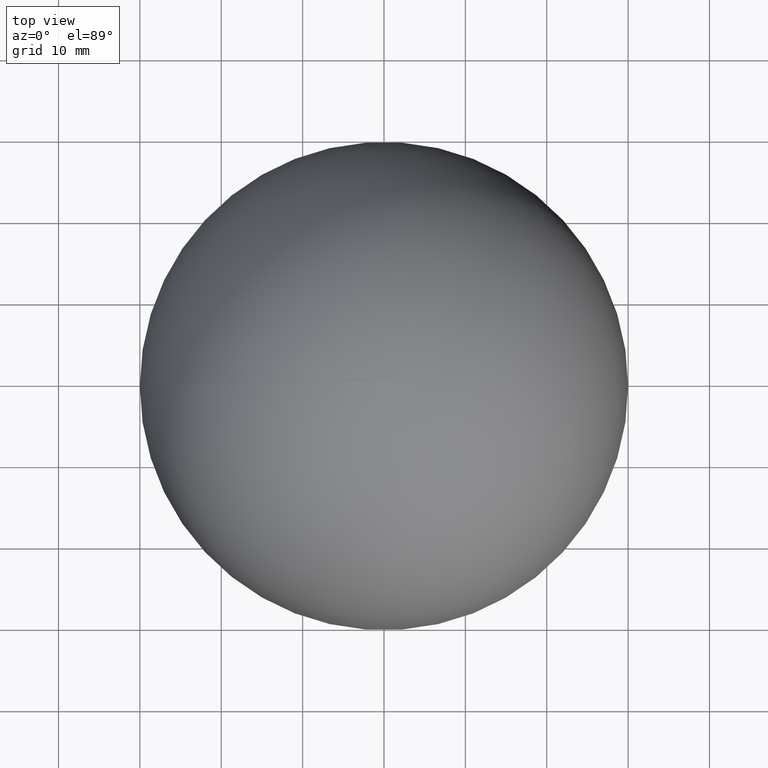
[diagram: clean part render]
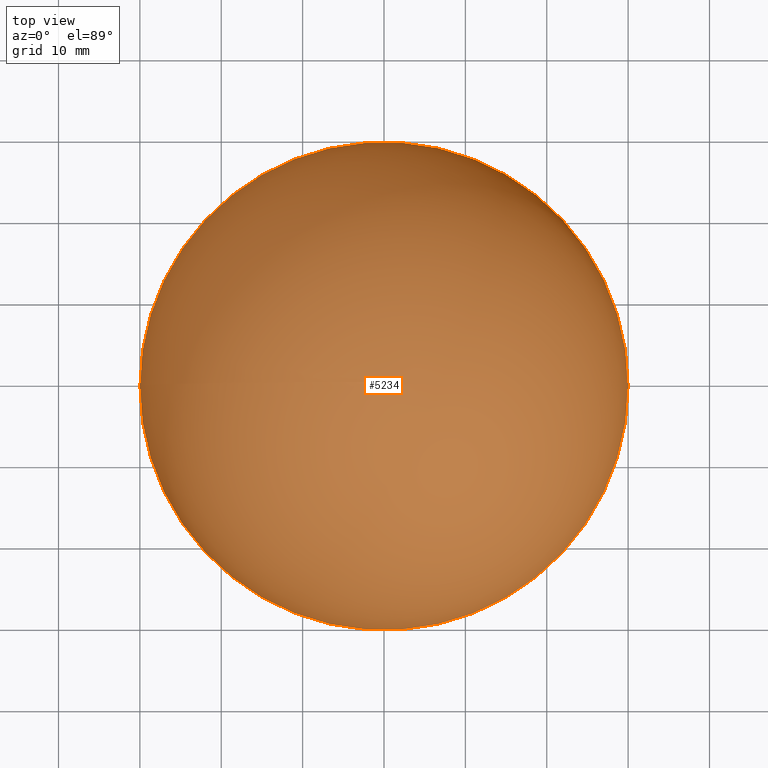
[diagram: same view with one face highlighted and labeled with its STEP entity id]
A machine part, top view. The second image highlights one B-rep face of the part: STEP entity #5234.
In plain terms, the highlighted spherical surface has radius 30 mm.
Its self-contained STEP definition (entity closure, byte-faithful):
#104 = AXIS2_PLACEMENT_3D ( 'NONE', #4785, #7397, #1343 ) ;
#532 = DIRECTION ( 'NONE',  ( -6.982962677686266711E-15, 0.000000000000000000, 1.000000000000000000 ) ) ;
#748 = AXIS2_PLACEMENT_3D ( 'NONE', #4991, #10920, #2497 ) ;
#841 = CARTESIAN_POINT ( 'NONE',  ( 30.00000000000000000, 3.673940397442059178E-15, 2.094888803305880013E-13 ) ) ;
#1343 = DIRECTION ( 'NONE',  ( -1.000000000000000000, 0.000000000000000000, -6.982962677686266711E-15 ) ) ;
#1741 = VERTEX_POINT ( 'NONE', #841 ) ;
#1789 = ORIENTED_EDGE ( 'NONE', *, *, #9376, .F. ) ;
#2199 = CIRCLE ( 'NONE', #748, 30.00000000000000000 ) ;
#2497 = DIRECTION ( 'NONE',  ( -1.000000000000000000, 0.000000000000000000, -6.982962677686266711E-15 ) ) ;
#3014 = DIRECTION ( 'NONE',  ( -1.000000000000000000, 0.000000000000000000, -6.982962677686266711E-15 ) ) ;
#3222 = EDGE_CURVE ( 'NONE', #9562, #1741, #2199, .T. ) ;
#4785 = CARTESIAN_POINT ( 'NONE',  ( 0.000000000000000000, 0.000000000000000000, 0.000000000000000000 ) ) ;
#4991 = CARTESIAN_POINT ( 'NONE',  ( 0.000000000000000000, 0.000000000000000000, 0.000000000000000000 ) ) ;
#5139 = CARTESIAN_POINT ( 'NONE',  ( -30.00000000000000000, 0.000000000000000000, -2.094888803305880013E-13 ) ) ;
#5234 = ADVANCED_FACE ( 'NONE', ( #6922 ), #5745, .T. ) ;
#5305 = CIRCLE ( 'NONE', #104, 30.00000000000000000 ) ;
#5745 = SPHERICAL_SURFACE ( 'NONE', #10040, 30.00000000000000000 ) ;
#6922 = FACE_OUTER_BOUND ( 'NONE', #10424, .T. ) ;
#7237 = CARTESIAN_POINT ( 'NONE',  ( 0.000000000000000000, 0.000000000000000000, 0.000000000000000000 ) ) ;
#7397 = DIRECTION ( 'NONE',  ( 6.982962677686266711E-15, 0.000000000000000000, -1.000000000000000000 ) ) ;
#9376 = EDGE_CURVE ( 'NONE', #1741, #9562, #5305, .T. ) ;
#9562 = VERTEX_POINT ( 'NONE', #5139 ) ;
#9588 = ORIENTED_EDGE ( 'NONE', *, *, #3222, .F. ) ;
#10040 = AXIS2_PLACEMENT_3D ( 'NONE', #7237, #532, #3014 ) ;
#10424 = EDGE_LOOP ( 'NONE', ( #9588, #1789 ) ) ;
#10920 = DIRECTION ( 'NONE',  ( 6.982962677686266711E-15, 0.000000000000000000, -1.000000000000000000 ) ) ;